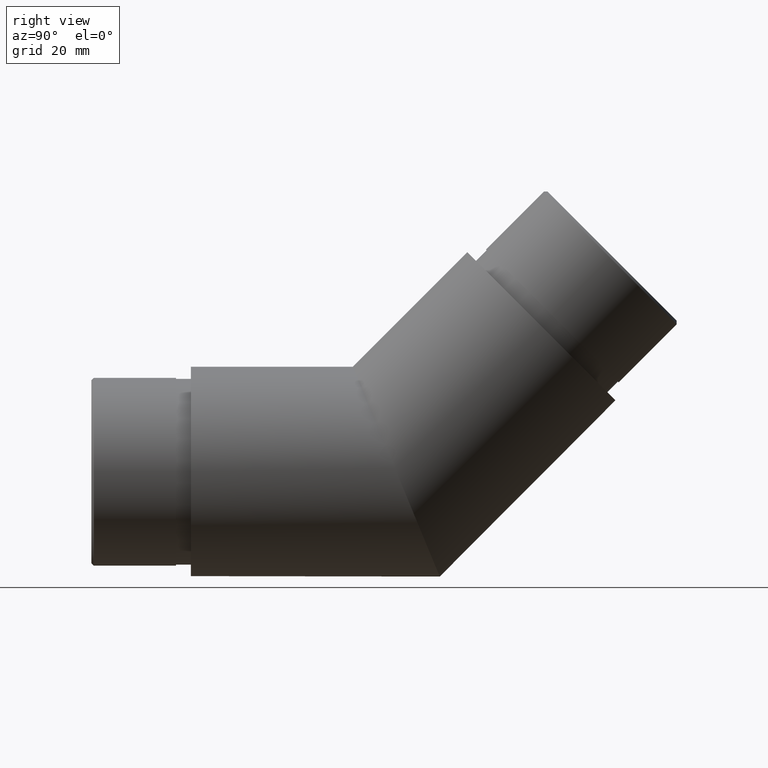
[diagram: clean part render]
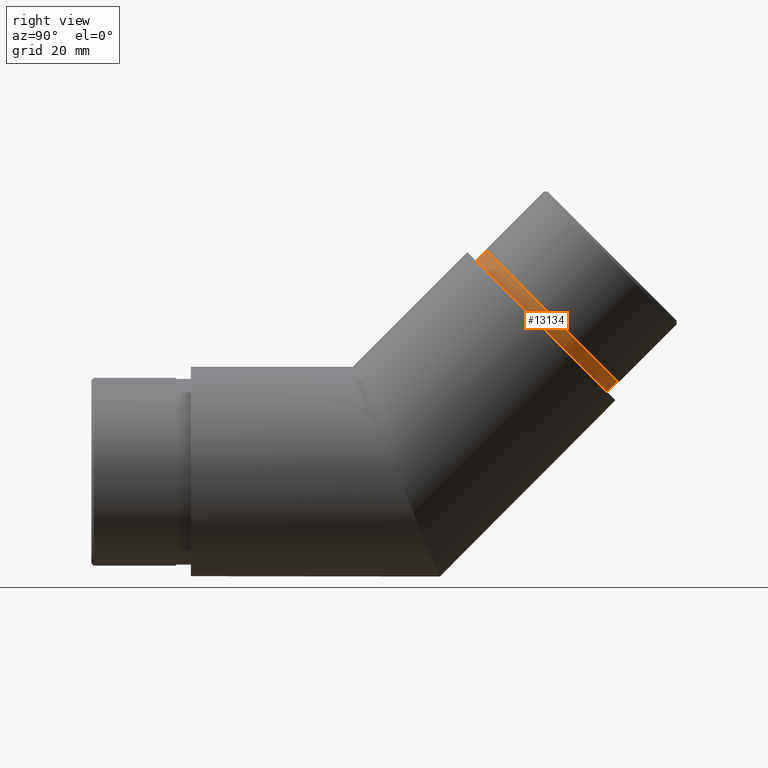
[diagram: same view with one face highlighted and labeled with its STEP entity id]
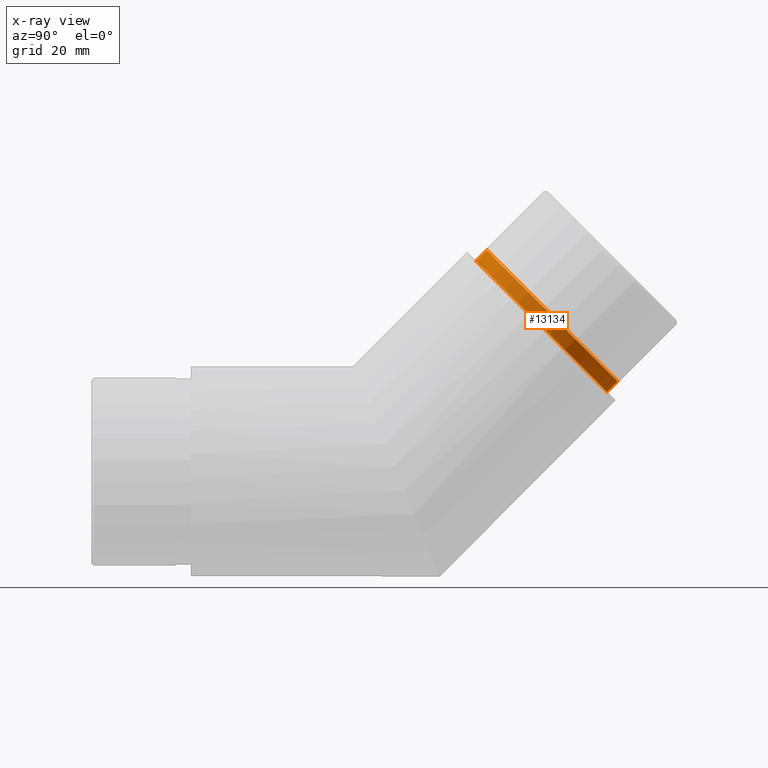
[diagram: x-ray of the same camera — body ghosted, the highlighted face saturated]
A machine part, right view. The second image highlights one B-rep face of the part: STEP entity #13134.
The next image is the same camera in x-ray: the body ghosted, the highlighted face saturated — about 0% of this face is hidden behind the body in this view.
In plain terms, the highlighted cylindrical surface (bore or boss wall) has radius 18.65 mm, axis along (-0, -0.7071, -0.7071).
Its self-contained STEP definition (entity closure, byte-faithful):
#216 = CARTESIAN_POINT ( 'NONE',  ( 0.0000000000000000000, 59.36916485072166700, 44.48415395505233500 ) ) ;
#271 = DIRECTION ( 'NONE',  ( 0.0000000000000000000, -0.7071067811865489100, 0.7071067811865462400 ) ) ;
#2802 = ORIENTED_EDGE ( 'NONE', *, *, #7776, .T. ) ;
#2948 = CYLINDRICAL_SURFACE ( 'NONE', #2970, 18.65000000000000600 ) ;
#2970 = AXIS2_PLACEMENT_3D ( 'NONE', #12160, #9058, #3755 ) ;
#3709 = EDGE_CURVE ( 'NONE', #11288, #11288, #12919, .T. ) ;
#3728 = EDGE_LOOP ( 'NONE', ( #4704 ) ) ;
#3755 = DIRECTION ( 'NONE',  ( 0.0000000000000000000, 0.7071067811865493500, -0.7071067811865455700 ) ) ;
#4704 = ORIENTED_EDGE ( 'NONE', *, *, #3709, .T. ) ;
#4956 = CARTESIAN_POINT ( 'NONE',  ( 0.0000000000000000000, 72.55670631985081800, 31.29661248592325500 ) ) ;
#5097 = AXIS2_PLACEMENT_3D ( 'NONE', #4956, #11277, #10276 ) ;
#5938 = FACE_OUTER_BOUND ( 'NONE', #11392, .T. ) ;
#6409 = CARTESIAN_POINT ( 'NONE',  ( 0.0000000000000000000, 57.24784450716200000, 42.36283361149266100 ) ) ;
#6557 = DIRECTION ( 'NONE',  ( 0.0000000000000000000, 0.7071067811865463500, 0.7071067811865487900 ) ) ;
#7776 = EDGE_CURVE ( 'NONE', #8642, #8642, #11468, .T. ) ;
#8642 = VERTEX_POINT ( 'NONE', #216 ) ;
#9058 = DIRECTION ( 'NONE',  ( -0.0000000000000000000, -0.7071067811865459100, -0.7071067811865492400 ) ) ;
#9555 = CARTESIAN_POINT ( 'NONE',  ( 0.0000000000000000000, 70.43538597629113000, 29.17529214236357000 ) ) ;
#9773 = FACE_OUTER_BOUND ( 'NONE', #3728, .T. ) ;
#10276 = DIRECTION ( 'NONE',  ( 0.0000000000000000000, -0.7071067811865492400, 0.7071067811865459100 ) ) ;
#10309 = AXIS2_PLACEMENT_3D ( 'NONE', #9555, #6557, #271 ) ;
#11277 = DIRECTION ( 'NONE',  ( -0.0000000000000000000, -0.7071067811865459100, -0.7071067811865492400 ) ) ;
#11288 = VERTEX_POINT ( 'NONE', #6409 ) ;
#11392 = EDGE_LOOP ( 'NONE', ( #2802 ) ) ;
#11468 = CIRCLE ( 'NONE', #5097, 18.64999999999999900 ) ;
#12160 = CARTESIAN_POINT ( 'NONE',  ( 0.0000000000000000000, 72.55670631985081800, 31.29661248592325500 ) ) ;
#12919 = CIRCLE ( 'NONE', #10309, 18.64999999999999900 ) ;
#13134 = ADVANCED_FACE ( 'NONE', ( #5938, #9773 ), #2948, .T. ) ;